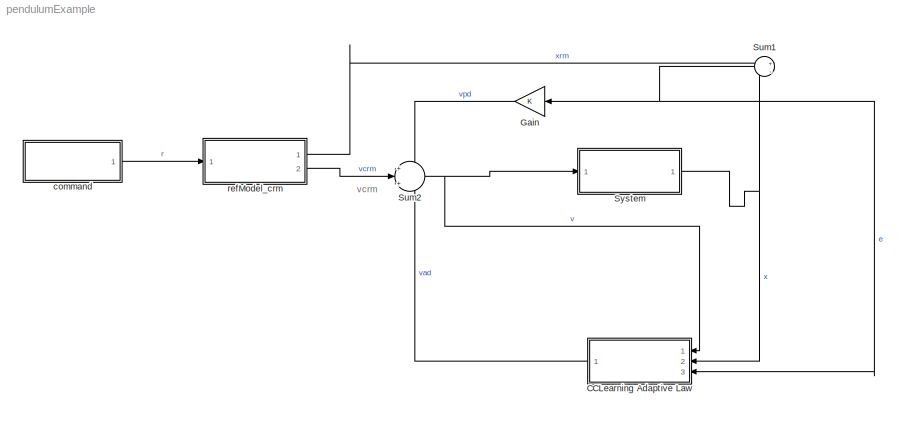
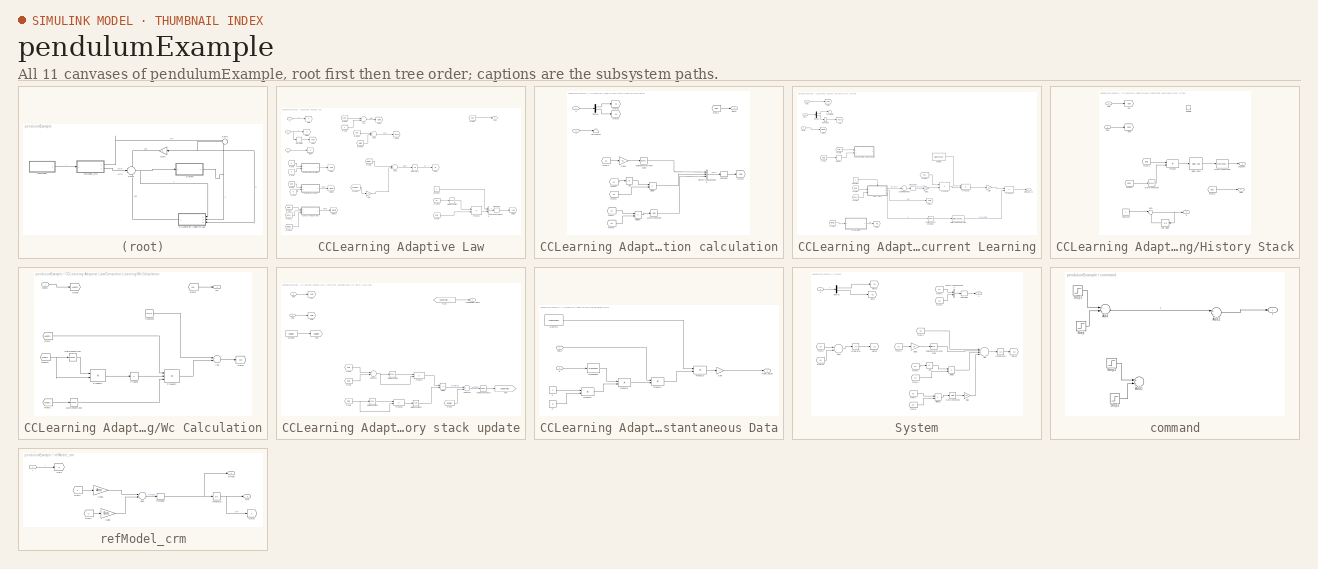
[diagram: thumbnail index - all 11 canvases of the model, root first then tree order]
MODEL pendulumExample
KIND model
CONFIG InitFcn = init\n
CONFIG StopFcn = plotlab
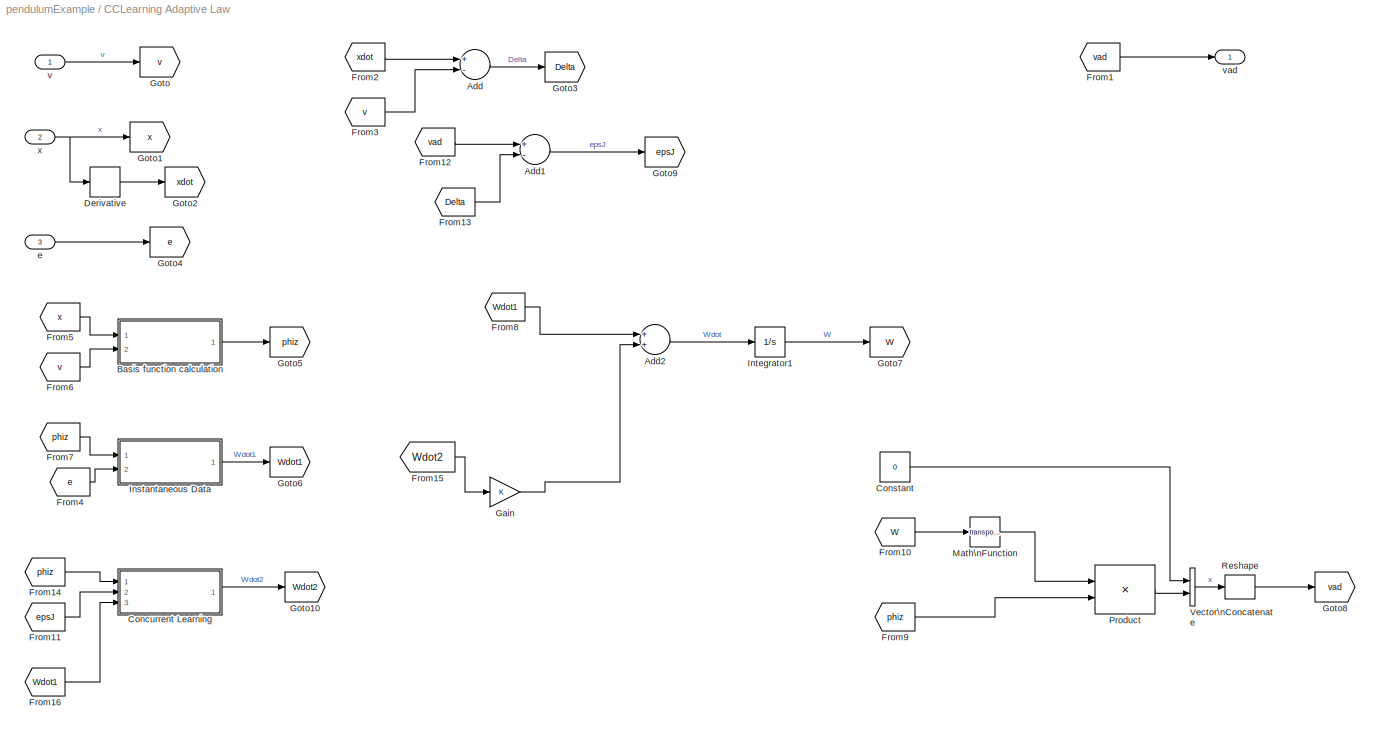
BLOCK [SubSystem] CCLearning Adaptive Law
  FunctionWithSeparateData = off
  MaskHideContents = off
  MinAlgLoopOccurrences = off
  Opaque = off
  Ports = [3, 1]
  PropExecContextOutsideSubsystem = off
  RTWSystemCode = Auto
  RequestExecContextInheritance = off
  TreatAsAtomicUnit = on
BLOCK [Sum] CCLearning Adaptive Law/Add
  InputSameDT = off
  Inputs = +-
  OutDataType = fixdt(1, 16)
  OutDataTypeMode = Inherit via internal rule
  OutDataTypeStr = Inherit: Inherit via internal rule
  OutScaling = 2^-10
  Ports = [2, 1]
  SaturateOnIntegerOverflow = off
BLOCK [Sum] CCLearning Adaptive Law/Add1
  InputSameDT = off
  Inputs = +-
  OutDataType = fixdt(1, 16)
  OutDataTypeMode = Inherit via internal rule
  OutDataTypeStr = Inherit: Inherit via internal rule
  OutScaling = 2^-10
  Ports = [2, 1]
  SaturateOnIntegerOverflow = off
BLOCK [Sum] CCLearning Adaptive Law/Add2
  InputSameDT = off
  OutDataType = fixdt(1, 16)
  OutDataTypeMode = Inherit via internal rule
  OutDataTypeStr = Inherit: Inherit via internal rule
  OutScaling = 2^-10
  Ports = [2, 1]
  SaturateOnIntegerOverflow = off
BLOCK [SubSystem] CCLearning Adaptive Law/Basis function calculation
  FunctionWithSeparateData = off
  MaskHideContents = off
  MinAlgLoopOccurrences = off
  Opaque = off
  Ports = [2, 1]
  PropExecContextOutsideSubsystem = off
  RTWSystemCode = Auto
  RequestExecContextInheritance = off
  TreatAsAtomicUnit = on
BLOCK [Abs] CCLearning Adaptive Law/Basis function calculation/Abs
  OutDataType = fixdt(1, 16)
  OutScaling = 2^0
  SaturateOnIntegerOverflow = off
BLOCK [Demux] CCLearning Adaptive Law/Basis function calculation/Demux
  DisplayOption = bar
  Outputs = 2
  Ports = [1, 2]
BLOCK [Product] CCLearning Adaptive Law/Basis function calculation/Divide
  InputSameDT = off
  Inputs = **
  OutDataType = fixdt(1, 16)
  OutDataTypeMode = Inherit via internal rule
  OutDataTypeStr = Inherit: Inherit via internal rule
  OutScaling = 2^-10
  Ports = [2, 1]
  RndMeth = Floor
  SaturateOnIntegerOverflow = off
BLOCK [Product] CCLearning Adaptive Law/Basis function calculation/Divide1
  InputSameDT = off
  Inputs = **
  OutDataType = fixdt(1, 16)
  OutDataTypeMode = Inherit via internal rule
  OutDataTypeStr = Inherit: Inherit via internal rule
  OutScaling = 2^-10
  Ports = [2, 1]
  RndMeth = Floor
  SaturateOnIntegerOverflow = off
BLOCK [From] CCLearning Adaptive Law/Basis function calculation/From1
  GotoTag = phiz
BLOCK [From] CCLearning Adaptive Law/Basis function calculation/From3
  GotoTag = x1
BLOCK [From] CCLearning Adaptive Law/Basis function calculation/From5
  GotoTag = x1
BLOCK [From] CCLearning Adaptive Law/Basis function calculation/From6
  GotoTag = x1
BLOCK [From] CCLearning Adaptive Law/Basis function calculation/From7
  GotoTag = x1
BLOCK [From] CCLearning Adaptive Law/Basis function calculation/From8
  GotoTag = x2
BLOCK [Gain] CCLearning Adaptive Law/Basis function calculation/Gain1
  Gain = pi
  OutDataType = fixdt(1, 16)
  OutDataTypeMode = Inherit via internal rule
  OutDataTypeStr = Inherit: Inherit via internal rule
  OutScaling = 2^0
  ParamDataTypeStr = Inherit: Inherit via internal rule
  ParameterDataType = fixdt(1, 16)
  ParameterDataTypeMode = Inherit via internal rule
  ParameterScaling = 2^0
  SaturateOnIntegerOverflow = off
BLOCK [Goto] CCLearning Adaptive Law/Basis function calculation/Goto1
  GotoTag = x1
  TagVisibility = local
BLOCK [Goto] CCLearning Adaptive Law/Basis function calculation/Goto2
  GotoTag = x2
  TagVisibility = local
BLOCK [Goto] CCLearning Adaptive Law/Basis function calculation/Goto3
  GotoTag = phiz
  TagVisibility = local
BLOCK [Math] CCLearning Adaptive Law/Basis function calculation/Math\nFunction
  OutDataType = fixdt(1, 16)
  OutScaling = 2^0
  Ports = [1, 1]
BLOCK [Reshape] CCLearning Adaptive Law/Basis function calculation/Reshape
  OutputDimensionality = Column vector (2-D)
  Ports = [1, 1]
BLOCK [Terminator] CCLearning Adaptive Law/Basis function calculation/Terminator
BLOCK [Trigonometry] CCLearning Adaptive Law/Basis function calculation/Trigonometric\nFunction
  Ports = [1, 1]
BLOCK [Concatenate] CCLearning Adaptive Law/Basis function calculation/Vector\nConcatenate
  Mode = Vector
  NumInputs = 3
  Ports = [3, 1]
BLOCK [Outport] CCLearning Adaptive Law/Basis function calculation/phi(z)
  IconDisplay = Port number
  OutDataType = fixdt(1, 16)
  OutScaling = 2^0
BLOCK [Inport] CCLearning Adaptive Law/Basis function calculation/v
  IconDisplay = Port number
  OutDataType = fixdt(1, 16)
  OutScaling = 2^0
  Port = 2
BLOCK [Inport] CCLearning Adaptive Law/Basis function calculation/x
  IconDisplay = Port number
  OutDataType = fixdt(1, 16)
  OutScaling = 2^0
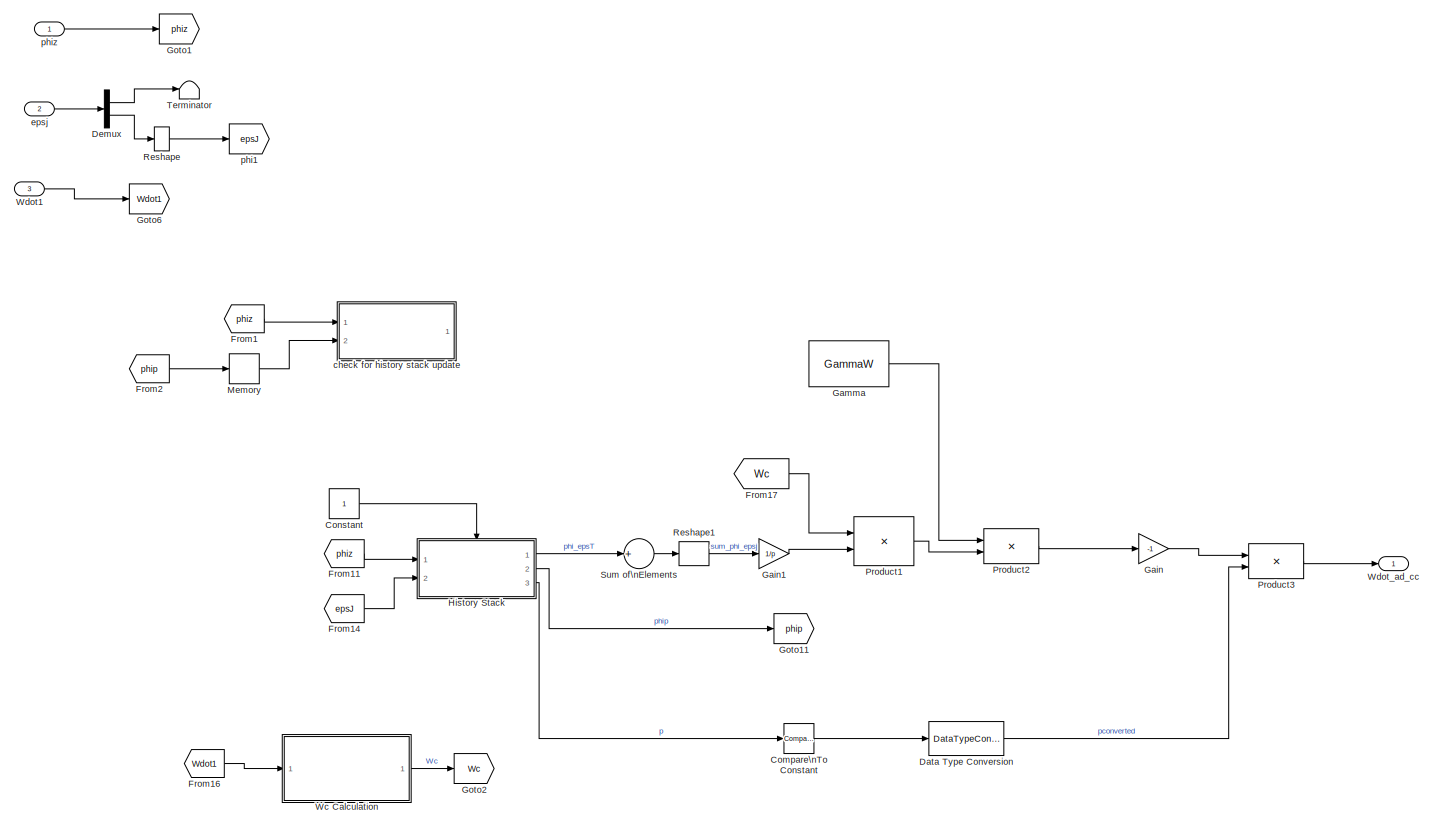
[diagram: CCLearning Adaptive Law/Concurrent Learning - part 1/1, most of the canvas]
BLOCK [SubSystem] CCLearning Adaptive Law/Concurrent Learning
  FunctionWithSeparateData = off
  MaskHideContents = off
  MinAlgLoopOccurrences = off
  Opaque = off
  Ports = [3, 1]
  PropExecContextOutsideSubsystem = off
  RTWSystemCode = Auto
  RequestExecContextInheritance = off
  TreatAsAtomicUnit = on
BLOCK [Reference] CCLearning Adaptive Law/Concurrent Learning/Compare\nTo Constant  REF=simulink/Logic and Bit\nOperations/Compare\nTo Constant
  FunctionWithSeparateData = off
  LogicOutDataTypeMode = uint8
  Ports = [1, 1]
  RTWMemSecDataConstants = Inherit from model
  RTWMemSecDataInternal = Inherit from model
  RTWMemSecDataParameters = Inherit from model
  RTWMemSecFuncExecute = Inherit from model
  RTWMemSecFuncInitTerm = Inherit from model
  ShowPortLabels = FromPortIcon
  SourceBlock = simulink/Logic and Bit\nOperations/Compare\nTo Constant
  SourceType = Compare To Constant
  SystemSampleTime = -1
  ZeroCross = off
  const = p
  relop = >=
BLOCK [Constant] CCLearning Adaptive Law/Concurrent Learning/Constant
  OutDataType = fixdt(1, 16)
  OutScaling = 2^0
BLOCK [DataTypeConversion] CCLearning Adaptive Law/Concurrent Learning/Data Type Conversion
  OutDataType = fixdt(1, 16)
  OutScaling = 2^0
  RndMeth = Floor
  SaturateOnIntegerOverflow = off
BLOCK [Demux] CCLearning Adaptive Law/Concurrent Learning/Demux
  DisplayOption = bar
  Outputs = 2
  Ports = [1, 2]
BLOCK [From] CCLearning Adaptive Law/Concurrent Learning/From1
  GotoTag = phiz
BLOCK [From] CCLearning Adaptive Law/Concurrent Learning/From11
  GotoTag = phiz
BLOCK [From] CCLearning Adaptive Law/Concurrent Learning/From14
  GotoTag = epsJ
BLOCK [From] CCLearning Adaptive Law/Concurrent Learning/From16
  GotoTag = Wdot1
BLOCK [From] CCLearning Adaptive Law/Concurrent Learning/From17
  GotoTag = Wc
BLOCK [From] CCLearning Adaptive Law/Concurrent Learning/From2
  GotoTag = phip
BLOCK [Gain] CCLearning Adaptive Law/Concurrent Learning/Gain
  Gain = -1
  OutDataType = fixdt(1, 16)
  OutDataTypeMode = Inherit via internal rule
  OutDataTypeStr = Inherit: Inherit via internal rule
  OutScaling = 2^0
  ParamDataTypeStr = Inherit: Inherit via internal rule
  ParameterDataType = fixdt(1, 16)
  ParameterDataTypeMode = Inherit via internal rule
  ParameterScaling = 2^0
  SaturateOnIntegerOverflow = off
BLOCK [Gain] CCLearning Adaptive Law/Concurrent Learning/Gain1
  Gain = 1/p
  OutDataType = fixdt(1, 16)
  OutDataTypeMode = Inherit via internal rule
  OutDataTypeStr = Inherit: Inherit via internal rule
  OutScaling = 2^0
  ParamDataTypeStr = Inherit: Inherit via internal rule
  ParameterDataType = fixdt(1, 16)
  ParameterDataTypeMode = Inherit via internal rule
  ParameterScaling = 2^0
  SaturateOnIntegerOverflow = off
BLOCK [Constant] CCLearning Adaptive Law/Concurrent Learning/Gamma
  OutDataType = fixdt(1, 16)
  OutScaling = 2^0
  Value = GammaW
  VectorParams1D = off
BLOCK [Goto] CCLearning Adaptive Law/Concurrent Learning/Goto1
  GotoTag = phiz
  TagVisibility = local
BLOCK [Goto] CCLearning Adaptive Law/Concurrent Learning/Goto11
  GotoTag = phip
  TagVisibility = local
BLOCK [Goto] CCLearning Adaptive Law/Concurrent Learning/Goto2
  GotoTag = Wc
  TagVisibility = local
BLOCK [Goto] CCLearning Adaptive Law/Concurrent Learning/Goto6
  GotoTag = Wdot1
  TagVisibility = local
BLOCK [SubSystem] CCLearning Adaptive Law/Concurrent Learning/History Stack
  FunctionWithSeparateData = off
  MaskHideContents = off
  MinAlgLoopOccurrences = off
  Opaque = off
  Ports = [2, 3, 1]
  PropExecContextOutsideSubsystem = off
  RTWSystemCode = Auto
  RequestExecContextInheritance = off
  TreatAsAtomicUnit = on
BLOCK [Constant] CCLearning Adaptive Law/Concurrent Learning/History Stack/Constant
  OutDataType = fixdt(1, 16)
  OutScaling = 2^0
BLOCK [Reference] CCLearning Adaptive Law/Concurrent Learning/History Stack/Delay Line1  REF=dspbuff3/Delay Line
  Ports = [1, 1]
  SourceBlock = dspbuff3/Delay Line
  SourceType = Delay Line
  directfeed = on
  enable_output = off
  hold_output = off
  ic = 0
  siz = p
BLOCK [EnablePort] CCLearning Adaptive Law/Concurrent Learning/History Stack/Enable
  Ports = []
BLOCK [FrameConversion] CCLearning Adaptive Law/Concurrent Learning/History Stack/Frame Conversion
  OutFrame = Sample-based
  Ports = [1, 1]
BLOCK [From] CCLearning Adaptive Law/Concurrent Learning/History Stack/From1
  GotoTag = epsj
BLOCK [From] CCLearning Adaptive Law/Concurrent Learning/History Stack/From2
  GotoTag = phiz
BLOCK [From] CCLearning Adaptive Law/Concurrent Learning/History Stack/From3
  GotoTag = phiz
BLOCK [Math] CCLearning Adaptive Law/Concurrent Learning/History Stack/Math\nFunction
  Operator = transpose
  OutDataType = fixdt(1, 16)
  OutScaling = 2^0
  Ports = [1, 1]
BLOCK [Product] CCLearning Adaptive Law/Concurrent Learning/History Stack/Product
  InputSameDT = off
  Multiplication = Matrix(*)
  OutDataType = fixdt(1, 16)
  OutDataTypeMode = Inherit via internal rule
  OutDataTypeStr = Inherit: Inherit via internal rule
  OutScaling = 2^0
  Ports = [2, 1]
  SaturateOnIntegerOverflow = off
BLOCK [Sum] CCLearning Adaptive Law/Concurrent Learning/History Stack/Sum
  IconShape = round
  InputSameDT = off
  Inputs = |++
  OutDataType = fixdt(1, 16)
  OutDataTypeMode = Inherit via internal rule
  OutDataTypeStr = Inherit: Inherit via internal rule
  OutScaling = 2^0
  Ports = [2, 1]
  SaturateOnIntegerOverflow = off
BLOCK [UnitDelay] CCLearning Adaptive Law/Concurrent Learning/History Stack/Unit Delay
  SampleTime = -1
BLOCK [Inport] CCLearning Adaptive Law/Concurrent Learning/History Stack/epsj
  IconDisplay = Port number
  OutDataType = fixdt(1, 16)
  OutScaling = 2^0
  Port = 2
BLOCK [Outport] CCLearning Adaptive Law/Concurrent Learning/History Stack/p
  IconDisplay = Port number
  OutDataType = fixdt(1, 16)
  OutScaling = 2^0
  Port = 3
BLOCK [Goto] CCLearning Adaptive Law/Concurrent Learning/History Stack/phi
  GotoTag = phiz
  TagVisibility = local
BLOCK [Goto] CCLearning Adaptive Law/Concurrent Learning/History Stack/phi1
  GotoTag = epsj
  TagVisibility = local
BLOCK [Outport] CCLearning Adaptive Law/Concurrent Learning/History Stack/phi_epsT
  IconDisplay = Port number
  OutDataType = fixdt(1, 16)
  OutScaling = 2^0
BLOCK [Outport] CCLearning Adaptive Law/Concurrent Learning/History Stack/phip
  IconDisplay = Port number
  OutDataType = fixdt(1, 16)
  OutScaling = 2^0
  Port = 2
BLOCK [Inport] CCLearning Adaptive Law/Concurrent Learning/History Stack/phiz
  IconDisplay = Port number
  OutDataType = fixdt(1, 16)
  OutScaling = 2^0
BLOCK [Memory] CCLearning Adaptive Law/Concurrent Learning/Memory
BLOCK [Product] CCLearning Adaptive Law/Concurrent Learning/Product1
  InputSameDT = off
  Multiplication = Matrix(*)
  OutDataType = fixdt(1, 16)
  OutDataTypeMode = Inherit via internal rule
  OutDataTypeStr = Inherit: Inherit via internal rule
  OutScaling = 2^0
  Ports = [2, 1]
  SaturateOnIntegerOverflow = off
BLOCK [Product] CCLearning Adaptive Law/Concurrent Learning/Product2
  InputSameDT = off
  OutDataType = fixdt(1, 16)
  OutDataTypeMode = Inherit via internal rule
  OutDataTypeStr = Inherit: Inherit via internal rule
  OutScaling = 2^0
  Ports = [2, 1]
  SaturateOnIntegerOverflow = off
BLOCK [Product] CCLearning Adaptive Law/Concurrent Learning/Product3
  InputSameDT = off
  OutDataType = fixdt(1, 16)
  OutDataTypeMode = Inherit via internal rule
  OutDataTypeStr = Inherit: Inherit via internal rule
  OutScaling = 2^0
  Ports = [2, 1]
  SaturateOnIntegerOverflow = off
BLOCK [Reshape] CCLearning Adaptive Law/Concurrent Learning/Reshape
  OutputDimensionality = Column vector (2-D)
  Ports = [1, 1]
BLOCK [Reshape] CCLearning Adaptive Law/Concurrent Learning/Reshape1
  OutputDimensionality = Column vector (2-D)
  Ports = [1, 1]
BLOCK [Sum] CCLearning Adaptive Law/Concurrent Learning/Sum of\nElements
  CollapseMode = Specified dimension
  InputSameDT = off
  Inputs = +
  OutDataType = fixdt(1, 16)
  OutDataTypeMode = Inherit via internal rule
  OutDataTypeStr = Inherit: Inherit via internal rule
  OutScaling = 2^-10
  Ports = [1, 1]
  SaturateOnIntegerOverflow = off
BLOCK [Terminator] CCLearning Adaptive Law/Concurrent Learning/Terminator
BLOCK [SubSystem] CCLearning Adaptive Law/Concurrent Learning/Wc Calculation
  FunctionWithSeparateData = off
  MaskHideContents = off
  MinAlgLoopOccurrences = off
  Opaque = off
  Ports = [1, 1]
  PropExecContextOutsideSubsystem = off
  RTWSystemCode = Auto
  RequestExecContextInheritance = off
BLOCK [Sum] CCLearning Adaptive Law/Concurrent Learning/Wc Calculation/Add
  InputSameDT = off
  Inputs = +-
  OutDataType = fixdt(1, 16)
  OutDataTypeMode = Inherit via internal rule
  OutDataTypeStr = Inherit: Inherit via internal rule
  OutScaling = 2^-10
  Ports = [2, 1]
  SaturateOnIntegerOverflow = off
BLOCK [Constant] CCLearning Adaptive Law/Concurrent Learning/Wc Calculation/Constant
  OutDataType = fixdt(1, 16)
  OutScaling = 2^0
  Value = eye(3)
BLOCK [From] CCLearning Adaptive Law/Concurrent Learning/Wc Calculation/From1
  GotoTag = Wdot1
BLOCK [From] CCLearning Adaptive Law/Concurrent Learning/Wc Calculation/From16
  GotoTag = Wdot1
BLOCK [From] CCLearning Adaptive Law/Concurrent Learning/Wc Calculation/From2
  GotoTag = Wdot1
BLOCK [From] CCLearning Adaptive Law/Concurrent Learning/Wc Calculation/From3
  GotoTag = Wc
BLOCK [Goto] CCLearning Adaptive Law/Concurrent Learning/Wc Calculation/Goto1
  GotoTag = Wc
  TagVisibility = local
BLOCK [Goto] CCLearning Adaptive Law/Concurrent Learning/Wc Calculation/Goto6
  GotoTag = Wdot1
  TagVisibility = local
BLOCK [Math] CCLearning Adaptive Law/Concurrent Learning/Wc Calculation/Math\nFunction1
  Operator = transpose
  OutDataType = fixdt(1, 16)
  OutScaling = 2^0
  Ports = [1, 1]
BLOCK [Math] CCLearning Adaptive Law/Concurrent Learning/Wc Calculation/Math\nFunction2
  Operator = transpose
  OutDataType = fixdt(1, 16)
  OutScaling = 2^0
  Ports = [1, 1]
BLOCK [Product] CCLearning Adaptive Law/Concurrent Learning/Wc Calculation/Product
  InputSameDT = off
  Inputs = /
  Multiplication = Matrix(*)
  OutDataType = fixdt(1, 16)
  OutDataTypeMode = Inherit via internal rule
  OutDataTypeStr = Inherit: Inherit via internal rule
  OutScaling = 2^0
  Ports = [1, 1]
  SaturateOnIntegerOverflow = off
BLOCK [Product] CCLearning Adaptive Law/Concurrent Learning/Wc Calculation/Product1
  InputSameDT = off
  Multiplication = Matrix(*)
  OutDataType = fixdt(1, 16)
  OutDataTypeMode = Inherit via internal rule
  OutDataTypeStr = Inherit: Inherit via internal rule
  OutScaling = 2^0
  Ports = [2, 1]
  SaturateOnIntegerOverflow = off
BLOCK [Product] CCLearning Adaptive Law/Concurrent Learning/Wc Calculation/Product2
  InputSameDT = off
  Inputs = ***
  Multiplication = Matrix(*)
  OutDataType = fixdt(1, 16)
  OutDataTypeMode = Inherit via internal rule
  OutDataTypeStr = Inherit: Inherit via internal rule
  OutScaling = 2^0
  Ports = [3, 1]
  SaturateOnIntegerOverflow = off
BLOCK [Outport] CCLearning Adaptive Law/Concurrent Learning/Wc Calculation/Wc
  IconDisplay = Port number
BLOCK [Inport] CCLearning Adaptive Law/Concurrent Learning/Wc Calculation/Wdot1
  IconDisplay = Port number
BLOCK [Inport] CCLearning Adaptive Law/Concurrent Learning/Wdot1
  IconDisplay = Port number
  Port = 3
BLOCK [Outport] CCLearning Adaptive Law/Concurrent Learning/Wdot_ad_cc
  IconDisplay = Port number
  OutDataType = fixdt(1, 16)
  OutScaling = 2^0
BLOCK [SubSystem] CCLearning Adaptive Law/Concurrent Learning/check for history stack update
  FunctionWithSeparateData = off
  MaskHideContents = off
  MinAlgLoopOccurrences = off
  Opaque = off
  Ports = [2, 1]
  PropExecContextOutsideSubsystem = off
  RTWSystemCode = Auto
  RequestExecContextInheritance = off
  TreatAsAtomicUnit = on
BLOCK [Reference] CCLearning Adaptive Law/Concurrent Learning/check for history stack update/Compare\nTo Zero  REF=simulink/Logic and Bit\nOperations/Compare\nTo Zero
  FunctionWithSeparateData = off
  LogicOutDataTypeMode = uint8
  Ports = [1, 1]
  RTWMemSecDataConstants = Inherit from model
  RTWMemSecDataInternal = Inherit from model
  RTWMemSecDataParameters = Inherit from model
  RTWMemSecFuncExecute = Inherit from model
  RTWMemSecFuncInitTerm = Inherit from model
  ShowPortLabels = FromPortIcon
  SourceBlock = simulink/Logic and Bit\nOperations/Compare\nTo Zero
  SourceType = Compare To Zero
  SystemSampleTime = -1
  ZeroCross = off
  relop = >=
BLOCK [Constant] CCLearning Adaptive Law/Concurrent Learning/check for history stack update/Constant
  OutDataType = fixdt(1, 16)
  OutScaling = 2^0
  Value = epsilon
BLOCK [Product] CCLearning Adaptive Law/Concurrent Learning/check for history stack update/Divide
  InputSameDT = off
  Inputs = */
  OutDataType = fixdt(1, 16)
  OutDataTypeMode = Inherit via internal rule
  OutDataTypeStr = Inherit: Inherit via internal rule
  OutScaling = 2^-10
  Ports = [2, 1]
  RndMeth = Floor
  SaturateOnIntegerOverflow = off
BLOCK [From] CCLearning Adaptive Law/Concurrent Learning/check for history stack update/From
  GotoTag = updateHistoryStack
BLOCK [From] CCLearning Adaptive Law/Concurrent Learning/check for history stack update/From1
  GotoTag = phiz
BLOCK [From] CCLearning Adaptive Law/Concurrent Learning/check for history stack update/From2
  GotoTag = phip
BLOCK [From] CCLearning Adaptive Law/Concurrent Learning/check for history stack update/From3
  GotoTag = phiz
BLOCK [From] CCLearning Adaptive Law/Concurrent Learning/check for history stack update/From4
  GotoTag = epsilon
BLOCK [Math] CCLearning Adaptive Law/Concurrent Learning/check for history stack update/Math\nFunction
  Operator = transpose
  OutDataType = fixdt(1, 16)
  OutScaling = 2^0
  Ports = [1, 1]
BLOCK [Math] CCLearning Adaptive Law/Concurrent Learning/check for history stack update/Math\nFunction1
  Operator = transpose
  OutDataType = fixdt(1, 16)
  OutScaling = 2^0
  Ports = [1, 1]
BLOCK [Math] CCLearning Adaptive Law/Concurrent Learning/check for history stack update/Math\nFunction2
  Operator = sqrt
  OutDataType = fixdt(1, 16)
  OutScaling = 2^0
  Ports = [1, 1]
BLOCK [Product] CCLearning Adaptive Law/Concurrent Learning/check for history stack update/Product
  InputSameDT = off
  Multiplication = Matrix(*)
  OutDataType = fixdt(1, 16)
  OutDataTypeMode = Inherit via internal rule
  OutDataTypeStr = Inherit: Inherit via internal rule
  OutScaling = 2^0
  Ports = [2, 1]
  SaturateOnIntegerOverflow = off
BLOCK [Product] CCLearning Adaptive Law/Concurrent Learning/check for history stack update/Product1
  InputSameDT = off
  Multiplication = Matrix(*)
  OutDataType = fixdt(1, 16)
  OutDataTypeMode = Inherit via internal rule
  OutDataTypeStr = Inherit: Inherit via internal rule
  OutScaling = 2^0
  Ports = [2, 1]
  SaturateOnIntegerOverflow = off
BLOCK [Sum] CCLearning Adaptive Law/Concurrent Learning/check for history stack update/Subtract
  InputSameDT = off
  Inputs = +-
  OutDataType = fixdt(1, 16)
  OutDataTypeMode = Inherit via internal rule
  OutDataTypeStr = Inherit: Inherit via internal rule
  OutScaling = 2^-10
  Ports = [2, 1]
  SaturateOnIntegerOverflow = off
BLOCK [Sum] CCLearning Adaptive Law/Concurrent Learning/check for history stack update/Subtract1
  InputSameDT = off
  Inputs = +-
  OutDataType = fixdt(1, 16)
  OutDataTypeMode = Inherit via internal rule
  OutDataTypeStr = Inherit: Inherit via internal rule
  OutScaling = 2^-10
  Ports = [2, 1]
  SaturateOnIntegerOverflow = off
BLOCK [Goto] CCLearning Adaptive Law/Concurrent Learning/check for history stack update/phi
  GotoTag = phiz
  TagVisibility = local
BLOCK [Goto] CCLearning Adaptive Law/Concurrent Learning/check for history stack update/phi1
  GotoTag = phip
  TagVisibility = local
BLOCK [Goto] CCLearning Adaptive Law/Concurrent Learning/check for history stack update/phi2
  GotoTag = epsilon
  TagVisibility = local
BLOCK [Goto] CCLearning Adaptive Law/Concurrent Learning/check for history stack update/phi3
  GotoTag = updateHistoryStack
  TagVisibility = local
BLOCK [Inport] CCLearning Adaptive Law/Concurrent Learning/check for history stack update/phip
  IconDisplay = Port number
  OutDataType = fixdt(1, 16)
  OutScaling = 2^0
  Port = 2
BLOCK [Inport] CCLearning Adaptive Law/Concurrent Learning/check for history stack update/phiz
  IconDisplay = Port number
  OutDataType = fixdt(1, 16)
  OutScaling = 2^0
BLOCK [Outport] CCLearning Adaptive Law/Concurrent Learning/check for history stack update/updateHistoryStack
  IconDisplay = Port number
  OutDataType = fixdt(1, 16)
  OutScaling = 2^0
BLOCK [Inport] CCLearning Adaptive Law/Concurrent Learning/epsj
  IconDisplay = Port number
  OutDataType = fixdt(1, 16)
  OutScaling = 2^0
  Port = 2
BLOCK [Goto] CCLearning Adaptive Law/Concurrent Learning/phi1
  GotoTag = epsJ
  TagVisibility = local
BLOCK [Inport] CCLearning Adaptive Law/Concurrent Learning/phiz
  IconDisplay = Port number
  OutDataType = fixdt(1, 16)
  OutScaling = 2^0
BLOCK [Constant] CCLearning Adaptive Law/Constant
  OutDataType = fixdt(1, 16)
  OutScaling = 2^0
  Value = 0
BLOCK [Derivative] CCLearning Adaptive Law/Derivative
BLOCK [From] CCLearning Adaptive Law/From1
  GotoTag = vad
BLOCK [From] CCLearning Adaptive Law/From10
  GotoTag = W
BLOCK [From] CCLearning Adaptive Law/From11
  GotoTag = epsJ
BLOCK [From] CCLearning Adaptive Law/From12
  GotoTag = vad
BLOCK [From] CCLearning Adaptive Law/From13
  GotoTag = Delta
BLOCK [From] CCLearning Adaptive Law/From14
  GotoTag = phiz
BLOCK [From] CCLearning Adaptive Law/From15
  GotoTag = Wdot2
BLOCK [From] CCLearning Adaptive Law/From16
  GotoTag = Wdot1
BLOCK [From] CCLearning Adaptive Law/From2
  GotoTag = xdot
BLOCK [From] CCLearning Adaptive Law/From3
  GotoTag = v
BLOCK [From] CCLearning Adaptive Law/From4
  GotoTag = e
BLOCK [From] CCLearning Adaptive Law/From5
  GotoTag = x
BLOCK [From] CCLearning Adaptive Law/From6
  GotoTag = v
BLOCK [From] CCLearning Adaptive Law/From7
  GotoTag = phiz
BLOCK [From] CCLearning Adaptive Law/From8
  GotoTag = Wdot1
BLOCK [From] CCLearning Adaptive Law/From9
  GotoTag = phiz
BLOCK [Gain] CCLearning Adaptive Law/Gain
  OutDataType = fixdt(1, 16)
  OutDataTypeMode = Inherit via internal rule
  OutDataTypeStr = Inherit: Inherit via internal rule
  OutScaling = 2^0
  ParamDataTypeStr = Inherit: Inherit via internal rule
  ParameterDataType = fixdt(1, 16)
  ParameterDataTypeMode = Inherit via internal rule
  ParameterScaling = 2^0
  SaturateOnIntegerOverflow = off
BLOCK [Goto] CCLearning Adaptive Law/Goto
  GotoTag = v
  TagVisibility = local
BLOCK [Goto] CCLearning Adaptive Law/Goto1
  GotoTag = x
  TagVisibility = local
BLOCK [Goto] CCLearning Adaptive Law/Goto10
  GotoTag = Wdot2
  TagVisibility = local
BLOCK [Goto] CCLearning Adaptive Law/Goto2
  GotoTag = xdot
  TagVisibility = local
BLOCK [Goto] CCLearning Adaptive Law/Goto3
  GotoTag = Delta
  TagVisibility = local
BLOCK [Goto] CCLearning Adaptive Law/Goto4
  GotoTag = e
  TagVisibility = local
BLOCK [Goto] CCLearning Adaptive Law/Goto5
  GotoTag = phiz
  TagVisibility = local
BLOCK [Goto] CCLearning Adaptive Law/Goto6
  GotoTag = Wdot1
  TagVisibility = local
BLOCK [Goto] CCLearning Adaptive Law/Goto7
  GotoTag = W
  TagVisibility = local
BLOCK [Goto] CCLearning Adaptive Law/Goto8
  GotoTag = vad
  TagVisibility = local
BLOCK [Goto] CCLearning Adaptive Law/Goto9
  GotoTag = epsJ
  TagVisibility = local
BLOCK [SubSystem] CCLearning Adaptive Law/Instantaneous Data
  FunctionWithSeparateData = off
  MaskHideContents = off
  MinAlgLoopOccurrences = off
  Opaque = off
  Ports = [2, 1]
  PropExecContextOutsideSubsystem = off
  RTWSystemCode = Auto
  RequestExecContextInheritance = off
  TreatAsAtomicUnit = on
BLOCK [Gain] CCLearning Adaptive Law/Instantaneous Data/Gain
  Gain = -1
  OutDataType = fixdt(1, 16)
  OutDataTypeMode = Inherit via internal rule
  OutDataTypeStr = Inherit: Inherit via internal rule
  OutScaling = 2^0
  ParamDataTypeStr = Inherit: Inherit via internal rule
  ParameterDataType = fixdt(1, 16)
  ParameterDataTypeMode = Inherit via internal rule
  ParameterScaling = 2^0
  SaturateOnIntegerOverflow = off
BLOCK [Constant] CCLearning Adaptive Law/Instantaneous Data/Gamma
  OutDataType = fixdt(1, 16)
  OutScaling = 2^0
  Value = GammaW
  VectorParams1D = off
BLOCK [Constant] CCLearning Adaptive Law/Instantaneous Data/P
  OutDataType = fixdt(1, 16)
  OutScaling = 2^0
  Value = P
  VectorParams1D = off
BLOCK [Product] CCLearning Adaptive Law/Instantaneous Data/Product1
  InputSameDT = off
  Multiplication = Matrix(*)
  OutDataType = fixdt(1, 16)
  OutDataTypeMode = Inherit via internal rule
  OutDataTypeStr = Inherit: Inherit via internal rule
  OutScaling = 2^0
  Ports = [2, 1]
  SaturateOnIntegerOverflow = off
BLOCK [Product] CCLearning Adaptive Law/Instantaneous Data/Product2
  InputSameDT = off
  OutDataType = fixdt(1, 16)
  OutDataTypeMode = Inherit via internal rule
  OutDataTypeStr = Inherit: Inherit via internal rule
  OutScaling = 2^0
  Ports = [2, 1]
  SaturateOnIntegerOverflow = off
BLOCK [Product] CCLearning Adaptive Law/Instantaneous Data/Product3
  InputSameDT = off
  Multiplication = Matrix(*)
  OutDataType = fixdt(1, 16)
  OutDataTypeMode = Inherit via internal rule
  OutDataTypeStr = Inherit: Inherit via internal rule
  OutScaling = 2^0
  Ports = [2, 1]
  SaturateOnIntegerOverflow = off
BLOCK [Product] CCLearning Adaptive Law/Instantaneous Data/Product5
  InputSameDT = off
  Multiplication = Matrix(*)
  OutDataType = fixdt(1, 16)
  OutDataTypeMode = Inherit via internal rule
  OutDataTypeStr = Inherit: Inherit via internal rule
  OutScaling = 2^0
  Ports = [2, 1]
  SaturateOnIntegerOverflow = off
BLOCK [Reference] CCLearning Adaptive Law/Instantaneous Data/Transpose2  REF=dspmtrx3/Transpose
  FunctionWithSeparateData = off
  Hermitian = off
  Ports = [1, 1]
  RTWMemSecDataConstants = Inherit from model
  RTWMemSecDataInternal = Inherit from model
  RTWMemSecDataParameters = Inherit from model
  RTWMemSecFuncExecute = Inherit from model
  RTWMemSecFuncInitTerm = Inherit from model
  ShowPortLabels = FromPortIcon
  SourceBlock = dspmtrx3/Transpose
  SourceType = Transpose
  SystemSampleTime = -1
  overflowFlag = off
BLOCK [Outport] CCLearning Adaptive Law/Instantaneous Data/Wdot_ad_ins
  IconDisplay = Port number
  OutDataType = fixdt(1, 16)
  OutScaling = 2^0
BLOCK [Constant] CCLearning Adaptive Law/Instantaneous Data/b
  OutDataType = fixdt(1, 16)
  OutScaling = 2^0
  Value = B
  VectorParams1D = off
BLOCK [Inport] CCLearning Adaptive Law/Instantaneous Data/e
  IconDisplay = Port number
  OutDataType = fixdt(1, 16)
  OutScaling = 2^0
  Port = 2
BLOCK [Inport] CCLearning Adaptive Law/Instantaneous Data/phi(z)
  IconDisplay = Port number
  OutDataType = fixdt(1, 16)
  OutScaling = 2^0
BLOCK [Integrator] CCLearning Adaptive Law/Integrator1
  InitialCondition = W0
  Ports = [1, 1]
BLOCK [Math] CCLearning Adaptive Law/Math\nFunction
  Operator = transpose
  OutDataType = fixdt(1, 16)
  OutScaling = 2^0
  Ports = [1, 1]
BLOCK [Product] CCLearning Adaptive Law/Product
  InputSameDT = off
  Multiplication = Matrix(*)
  OutDataType = fixdt(1, 16)
  OutDataTypeMode = Inherit via internal rule
  OutDataTypeStr = Inherit: Inherit via internal rule
  OutScaling = 2^0
  Ports = [2, 1]
  SaturateOnIntegerOverflow = off
BLOCK [Reshape] CCLearning Adaptive Law/Reshape
  OutputDimensionality = Column vector (2-D)
  Ports = [1, 1]
BLOCK [Concatenate] CCLearning Adaptive Law/Vector\nConcatenate
  Mode = Vector
  Ports = [2, 1]
BLOCK [Inport] CCLearning Adaptive Law/e
  IconDisplay = Port number
  OutDataType = fixdt(1, 16)
  OutScaling = 2^0
  Port = 3
BLOCK [Inport] CCLearning Adaptive Law/v
  IconDisplay = Port number
  OutDataType = fixdt(1, 16)
  OutScaling = 2^0
BLOCK [Outport] CCLearning Adaptive Law/vad
  IconDisplay = Port number
  OutDataType = fixdt(1, 16)
  OutScaling = 2^0
BLOCK [Inport] CCLearning Adaptive Law/x
  IconDisplay = Port number
  OutDataType = fixdt(1, 16)
  OutScaling = 2^0
  Port = 2
BLOCK [Gain] Gain
  Gain = K
  Multiplication = Matrix(K*u)
  OutDataType = fixdt(1, 16)
  OutDataTypeMode = Inherit via internal rule
  OutDataTypeStr = Inherit: Inherit via internal rule
  OutScaling = 2^0
  ParamDataTypeStr = Inherit: Inherit via internal rule
  ParameterDataType = fixdt(1, 16)
  ParameterDataTypeMode = Inherit via internal rule
  ParameterScaling = 2^0
  SaturateOnIntegerOverflow = off
BLOCK [Sum] Sum1
  IconShape = round
  InputSameDT = off
  Inputs = +|-
  OutDataType = fixdt(1, 16)
  OutDataTypeMode = Inherit via internal rule
  OutDataTypeStr = Inherit: Inherit via internal rule
  OutScaling = 2^0
  Ports = [2, 1]
  SaturateOnIntegerOverflow = off
BLOCK [Sum] Sum2
  IconShape = round
  InputSameDT = off
  Inputs = +|+|-
  OutDataType = fixdt(1, 16)
  OutDataTypeMode = Inherit via internal rule
  OutDataTypeStr = Inherit: Inherit via internal rule
  OutScaling = 2^0
  Ports = [3, 1]
  SaturateOnIntegerOverflow = off
BLOCK [SubSystem] System
  FunctionWithSeparateData = off
  MaskHideContents = off
  MinAlgLoopOccurrences = off
  Opaque = off
  Ports = [1, 1]
  PropExecContextOutsideSubsystem = off
  RTWSystemCode = Auto
  RequestExecContextInheritance = off
  TreatAsAtomicUnit = on
BLOCK [Abs] System/Abs
  OutDataType = fixdt(1, 16)
  OutScaling = 2^0
  SaturateOnIntegerOverflow = off
BLOCK [Sum] System/Add
  InputSameDT = off
  Inputs = ++-+
  OutDataType = fixdt(1, 16)
  OutDataTypeMode = Inherit via internal rule
  OutDataTypeStr = Inherit: Inherit via internal rule
  OutScaling = 2^-10
  Ports = [4, 1]
  SaturateOnIntegerOverflow = off
BLOCK [Sum] System/Add1
  InputSameDT = off
  OutDataType = fixdt(1, 16)
  OutDataTypeMode = Inherit via internal rule
  OutDataTypeStr = Inherit: Inherit via internal rule
  OutScaling = 2^-10
  Ports = [2, 1]
  SaturateOnIntegerOverflow = off
BLOCK [Demux] System/Demux
  DisplayOption = bar
  Outputs = 2
  Ports = [1, 2]
BLOCK [Product] System/Divide
  InputSameDT = off
  Inputs = **
  OutDataType = fixdt(1, 16)
  OutDataTypeMode = Inherit via internal rule
  OutDataTypeStr = Inherit: Inherit via internal rule
  OutScaling = 2^-10
  Ports = [2, 1]
  RndMeth = Floor
  SaturateOnIntegerOverflow = off
BLOCK [Product] System/Divide1
  InputSameDT = off
  Inputs = **
  OutDataType = fixdt(1, 16)
  OutDataTypeMode = Inherit via internal rule
  OutDataTypeStr = Inherit: Inherit via internal rule
  OutScaling = 2^-10
  Ports = [2, 1]
  RndMeth = Floor
  SaturateOnIntegerOverflow = off
BLOCK [From] System/From1
  GotoTag = x1
BLOCK [From] System/From10
  GotoTag = u1
BLOCK [From] System/From2
  GotoTag = x2
BLOCK [From] System/From3
  GotoTag = x1
BLOCK [From] System/From4
  GotoTag = u2
BLOCK [From] System/From5
  GotoTag = x1
BLOCK [From] System/From6
  GotoTag = x1
BLOCK [From] System/From7
  GotoTag = x1
BLOCK [From] System/From8
  GotoTag = x2
BLOCK [From] System/From9
  GotoTag = x2
BLOCK [Gain] System/Gain
  Gain = 0.5
  OutDataType = fixdt(1, 16)
  OutDataTypeMode = Inherit via internal rule
  OutDataTypeStr = Inherit: Inherit via internal rule
  OutScaling = 2^0
  ParamDataTypeStr = Inherit: Inherit via internal rule
  ParameterDataType = fixdt(1, 16)
  ParameterDataTypeMode = Inherit via internal rule
  ParameterScaling = 2^0
  SaturateOnIntegerOverflow = off
BLOCK [Gain] System/Gain1
  Gain = pi
  OutDataType = fixdt(1, 16)
  OutDataTypeMode = Inherit via internal rule
  OutDataTypeStr = Inherit: Inherit via internal rule
  OutScaling = 2^0
  ParamDataTypeStr = Inherit: Inherit via internal rule
  ParameterDataType = fixdt(1, 16)
  ParameterDataTypeMode = Inherit via internal rule
  ParameterScaling = 2^0
  SaturateOnIntegerOverflow = off
BLOCK [Goto] System/Goto
  GotoTag = u2
  TagVisibility = local
BLOCK [Goto] System/Goto1
  GotoTag = u1
  TagVisibility = local
BLOCK [Goto] System/Goto3
  GotoTag = x1
  TagVisibility = local
BLOCK [Goto] System/Goto4
  GotoTag = x2
  TagVisibility = local
BLOCK [Integrator] System/Integrator
  InitialCondition = x0(1,1)
  Ports = [1, 1]
BLOCK [Integrator] System/Integrator1
  InitialCondition = x0(2,1)
  Ports = [1, 1]
BLOCK [Math] System/Math\nFunction
  OutDataType = fixdt(1, 16)
  OutScaling = 2^0
  Ports = [1, 1]
BLOCK [Reshape] System/Reshape
  OutputDimensionality = Column vector (2-D)
  Ports = [1, 1]
BLOCK [Trigonometry] System/Trigonometric\nFunction
  Ports = [1, 1]
BLOCK [Concatenate] System/Vector\nConcatenate
  Mode = Vector
  Ports = [2, 1]
BLOCK [Inport] System/u
  IconDisplay = Port number
  OutDataType = fixdt(1, 16)
  OutScaling = 2^0
BLOCK [Outport] System/x
  IconDisplay = Port number
  OutDataType = fixdt(1, 16)
  OutScaling = 2^0
BLOCK [SubSystem] command
  FunctionWithSeparateData = off
  MaskHideContents = off
  MinAlgLoopOccurrences = off
  Opaque = off
  Ports = [0, 1]
  PropExecContextOutsideSubsystem = off
  RTWSystemCode = Auto
  RequestExecContextInheritance = off
BLOCK [Sum] command/Add
  InputSameDT = off
  OutDataType = fixdt(1, 16)
  OutDataTypeMode = Inherit via internal rule
  OutDataTypeStr = Inherit: Inherit via internal rule
  OutScaling = 2^-10
  Ports = [2, 1]
  SaturateOnIntegerOverflow = off
BLOCK [Sum] command/Add1
  InputSameDT = off
  OutDataType = fixdt(1, 16)
  OutDataTypeMode = Inherit via internal rule
  OutDataTypeStr = Inherit: Inherit via internal rule
  OutScaling = 2^-10
  Ports = [2, 1]
  SaturateOnIntegerOverflow = off
BLOCK [Sum] command/Add2
  InputSameDT = off
  OutDataType = fixdt(1, 16)
  OutDataTypeMode = Inherit via internal rule
  OutDataTypeStr = Inherit: Inherit via internal rule
  OutScaling = 2^-10
  Ports = [2, 1]
  SaturateOnIntegerOverflow = off
BLOCK [Step] command/Step
  After = -r
  SampleTime = 0
  Time = tr(2)
BLOCK [Step] command/Step1
  After = r
  SampleTime = 0
  Time = tr(1)
BLOCK [Step] command/Step2
  After = -r
  SampleTime = 0
  Time = 45
BLOCK [Step] command/Step3
  After = r
  SampleTime = 0
  Time = 40
BLOCK [Outport] command/r
  IconDisplay = Port number
BLOCK [SubSystem] refModel_crm
  FunctionWithSeparateData = off
  MaskHideContents = off
  MinAlgLoopOccurrences = off
  Opaque = off
  Ports = [1, 2]
  PropExecContextOutsideSubsystem = off
  RTWSystemCode = Auto
  RequestExecContextInheritance = off
  TreatAsAtomicUnit = on
BLOCK [Sum] refModel_crm/Add1
  InputSameDT = off
  OutDataType = fixdt(1, 16)
  OutDataTypeMode = Inherit via internal rule
  OutDataTypeStr = Inherit: Inherit via internal rule
  OutScaling = 2^-10
  Ports = [2, 1]
  SaturateOnIntegerOverflow = off
BLOCK [From] refModel_crm/From2
  GotoTag = x
BLOCK [From] refModel_crm/From4
  GotoTag = u
BLOCK [Gain] refModel_crm/Gain1
  Gain = Arm
  Multiplication = Matrix(K*u)
  OutDataType = fixdt(1, 16)
  OutDataTypeMode = Inherit via internal rule
  OutDataTypeStr = Inherit: Inherit via internal rule
  OutScaling = 2^0
  ParamDataTypeStr = Inherit: Inherit via internal rule
  ParameterDataType = fixdt(1, 16)
  ParameterDataTypeMode = Inherit via internal rule
  ParameterScaling = 2^0
  SaturateOnIntegerOverflow = off
BLOCK [Gain] refModel_crm/Gain2
  Gain = Brm
  Multiplication = Matrix(K*u)
  OutDataType = fixdt(1, 16)
  OutDataTypeMode = Inherit via internal rule
  OutDataTypeStr = Inherit: Inherit via internal rule
  OutScaling = 2^0
  ParamDataTypeStr = Inherit: Inherit via internal rule
  ParameterDataType = fixdt(1, 16)
  ParameterDataTypeMode = Inherit via internal rule
  ParameterScaling = 2^0
  SaturateOnIntegerOverflow = off
BLOCK [Goto] refModel_crm/Goto
  GotoTag = u
  TagVisibility = local
BLOCK [Goto] refModel_crm/Goto1
  GotoTag = x
  TagVisibility = local
BLOCK [Integrator] refModel_crm/Integrator
  InitialCondition = x0
  Ports = [1, 1]
BLOCK [Reshape] refModel_crm/Reshape
  OutputDimensionality = Column vector (2-D)
  Ports = [1, 1]
BLOCK [Inport] refModel_crm/r
  IconDisplay = Port number
  OutDataType = fixdt(1, 16)
  OutScaling = 2^0
BLOCK [Outport] refModel_crm/xrm
  IconDisplay = Port number
  OutDataType = fixdt(1, 16)
  OutScaling = 2^0
BLOCK [Outport] refModel_crm/xrmdot
  IconDisplay = Port number
  OutDataType = fixdt(1, 16)
  OutScaling = 2^0
  Port = 2
ANNOTATION (root): vcrm
LINE CCLearning Adaptive Law/Add1:1 -> CCLearning Adaptive Law/Goto9:1
LINE CCLearning Adaptive Law/Add2:1 -> CCLearning Adaptive Law/Integrator1:1
LINE CCLearning Adaptive Law/Add:1 -> CCLearning Adaptive Law/Goto3:1
LINE CCLearning Adaptive Law/Basis function calculation/Abs:1 -> CCLearning Adaptive Law/Basis function calculation/Divide:1
LINE CCLearning Adaptive Law/Basis function calculation/Demux:1 -> CCLearning Adaptive Law/Basis function calculation/Goto1:1
LINE CCLearning Adaptive Law/Basis function calculation/Demux:2 -> CCLearning Adaptive Law/Basis function calculation/Goto2:1
LINE CCLearning Adaptive Law/Basis function calculation/Divide1:1 -> CCLearning Adaptive Law/Basis function calculation/Math\nFunction:1
LINE CCLearning Adaptive Law/Basis function calculation/Divide:1 -> CCLearning Adaptive Law/Basis function calculation/Vector\nConcatenate:2
LINE CCLearning Adaptive Law/Basis function calculation/From1:1 -> CCLearning Adaptive Law/Basis function calculation/phi(z):1
LINE CCLearning Adaptive Law/Basis function calculation/From3:1 -> CCLearning Adaptive Law/Basis function calculation/Gain1:1
LINE CCLearning Adaptive Law/Basis function calculation/From5:1 -> CCLearning Adaptive Law/Basis function calculation/Abs:1
LINE CCLearning Adaptive Law/Basis function calculation/From6:1 -> CCLearning Adaptive Law/Basis function calculation/Divide:2
LINE CCLearning Adaptive Law/Basis function calculation/From7:1 -> CCLearning Adaptive Law/Basis function calculation/Divide1:1
LINE CCLearning Adaptive Law/Basis function calculation/From8:1 -> CCLearning Adaptive Law/Basis function calculation/Divide1:2
LINE CCLearning Adaptive Law/Basis function calculation/Gain1:1 -> CCLearning Adaptive Law/Basis function calculation/Trigonometric\nFunction:1
LINE CCLearning Adaptive Law/Basis function calculation/Math\nFunction:1 -> CCLearning Adaptive Law/Basis function calculation/Vector\nConcatenate:3
LINE CCLearning Adaptive Law/Basis function calculation/Reshape:1 -> CCLearning Adaptive Law/Basis function calculation/Goto3:1
LINE CCLearning Adaptive Law/Basis function calculation/Trigonometric\nFunction:1 -> CCLearning Adaptive Law/Basis function calculation/Vector\nConcatenate:1
LINE CCLearning Adaptive Law/Basis function calculation/Vector\nConcatenate:1 -> CCLearning Adaptive Law/Basis function calculation/Reshape:1
LINE CCLearning Adaptive Law/Basis function calculation/v:1 -> CCLearning Adaptive Law/Basis function calculation/Terminator:1
LINE CCLearning Adaptive Law/Basis function calculation/x:1 -> CCLearning Adaptive Law/Basis function calculation/Demux:1
LINE CCLearning Adaptive Law/Basis function calculation:1 -> CCLearning Adaptive Law/Goto5:1
LINE CCLearning Adaptive Law/Concurrent Learning/Compare\nTo Constant:1 -> CCLearning Adaptive Law/Concurrent Learning/Data Type Conversion:1
LINE CCLearning Adaptive Law/Concurrent Learning/Constant:1 -> CCLearning Adaptive Law/Concurrent Learning/History Stack:enable
LINE CCLearning Adaptive Law/Concurrent Learning/Data Type Conversion:1 -> CCLearning Adaptive Law/Concurrent Learning/Product3:2
LINE CCLearning Adaptive Law/Concurrent Learning/Demux:1 -> CCLearning Adaptive Law/Concurrent Learning/Terminator:1
LINE CCLearning Adaptive Law/Concurrent Learning/Demux:2 -> CCLearning Adaptive Law/Concurrent Learning/Reshape:1
LINE CCLearning Adaptive Law/Concurrent Learning/From11:1 -> CCLearning Adaptive Law/Concurrent Learning/History Stack:1
LINE CCLearning Adaptive Law/Concurrent Learning/From14:1 -> CCLearning Adaptive Law/Concurrent Learning/History Stack:2
LINE CCLearning Adaptive Law/Concurrent Learning/From16:1 -> CCLearning Adaptive Law/Concurrent Learning/Wc Calculation:1
LINE CCLearning Adaptive Law/Concurrent Learning/From17:1 -> CCLearning Adaptive Law/Concurrent Learning/Product1:1
LINE CCLearning Adaptive Law/Concurrent Learning/From1:1 -> CCLearning Adaptive Law/Concurrent Learning/check for history stack update:1
LINE CCLearning Adaptive Law/Concurrent Learning/From2:1 -> CCLearning Adaptive Law/Concurrent Learning/Memory:1
LINE CCLearning Adaptive Law/Concurrent Learning/Gain1:1 -> CCLearning Adaptive Law/Concurrent Learning/Product1:2
LINE CCLearning Adaptive Law/Concurrent Learning/Gain:1 -> CCLearning Adaptive Law/Concurrent Learning/Product3:1
LINE CCLearning Adaptive Law/Concurrent Learning/Gamma:1 -> CCLearning Adaptive Law/Concurrent Learning/Product2:1
LINE CCLearning Adaptive Law/Concurrent Learning/History Stack/Constant:1 -> CCLearning Adaptive Law/Concurrent Learning/History Stack/Sum:1
LINE CCLearning Adaptive Law/Concurrent Learning/History Stack/Delay Line1:1 -> CCLearning Adaptive Law/Concurrent Learning/History Stack/Frame Conversion:1
LINE CCLearning Adaptive Law/Concurrent Learning/History Stack/Frame Conversion:1 -> CCLearning Adaptive Law/Concurrent Learning/History Stack/phi_epsT:1
LINE CCLearning Adaptive Law/Concurrent Learning/History Stack/From1:1 -> CCLearning Adaptive Law/Concurrent Learning/History Stack/Math\nFunction:1
LINE CCLearning Adaptive Law/Concurrent Learning/History Stack/From2:1 -> CCLearning Adaptive Law/Concurrent Learning/History Stack/Product:1
LINE CCLearning Adaptive Law/Concurrent Learning/History Stack/From3:1 -> CCLearning Adaptive Law/Concurrent Learning/History Stack/phip:1
LINE CCLearning Adaptive Law/Concurrent Learning/History Stack/Math\nFunction:1 -> CCLearning Adaptive Law/Concurrent Learning/History Stack/Product:2
LINE CCLearning Adaptive Law/Concurrent Learning/History Stack/Product:1 -> CCLearning Adaptive Law/Concurrent Learning/History Stack/Delay Line1:1
NET CCLearning Adaptive Law/Concurrent Learning/History Stack/Sum:1 -> CCLearning Adaptive Law/Concurrent Learning/History Stack/Unit Delay:1, CCLearning Adaptive Law/Concurrent Learning/History Stack/p:1
LINE CCLearning Adaptive Law/Concurrent Learning/History Stack/Unit Delay:1 -> CCLearning Adaptive Law/Concurrent Learning/History Stack/Sum:2
LINE CCLearning Adaptive Law/Concurrent Learning/History Stack/epsj:1 -> CCLearning Adaptive Law/Concurrent Learning/History Stack/phi1:1
LINE CCLearning Adaptive Law/Concurrent Learning/History Stack/phiz:1 -> CCLearning Adaptive Law/Concurrent Learning/History Stack/phi:1
LINE CCLearning Adaptive Law/Concurrent Learning/History Stack:1 -> CCLearning Adaptive Law/Concurrent Learning/Sum of\nElements:1
LINE CCLearning Adaptive Law/Concurrent Learning/History Stack:2 -> CCLearning Adaptive Law/Concurrent Learning/Goto11:1
LINE CCLearning Adaptive Law/Concurrent Learning/History Stack:3 -> CCLearning Adaptive Law/Concurrent Learning/Compare\nTo Constant:1
LINE CCLearning Adaptive Law/Concurrent Learning/Memory:1 -> CCLearning Adaptive Law/Concurrent Learning/check for history stack update:2
LINE CCLearning Adaptive Law/Concurrent Learning/Product1:1 -> CCLearning Adaptive Law/Concurrent Learning/Product2:2
LINE CCLearning Adaptive Law/Concurrent Learning/Product2:1 -> CCLearning Adaptive Law/Concurrent Learning/Gain:1
LINE CCLearning Adaptive Law/Concurrent Learning/Product3:1 -> CCLearning Adaptive Law/Concurrent Learning/Wdot_ad_cc:1
LINE CCLearning Adaptive Law/Concurrent Learning/Reshape1:1 -> CCLearning Adaptive Law/Concurrent Learning/Gain1:1
LINE CCLearning Adaptive Law/Concurrent Learning/Reshape:1 -> CCLearning Adaptive Law/Concurrent Learning/phi1:1
LINE CCLearning Adaptive Law/Concurrent Learning/Sum of\nElements:1 -> CCLearning Adaptive Law/Concurrent Learning/Reshape1:1
LINE CCLearning Adaptive Law/Concurrent Learning/Wc Calculation/Add:1 -> CCLearning Adaptive Law/Concurrent Learning/Wc Calculation/Goto1:1
LINE CCLearning Adaptive Law/Concurrent Learning/Wc Calculation/Constant:1 -> CCLearning Adaptive Law/Concurrent Learning/Wc Calculation/Add:1
NET CCLearning Adaptive Law/Concurrent Learning/Wc Calculation/From16:1 -> CCLearning Adaptive Law/Concurrent Learning/Wc Calculation/Math\nFunction1:1, CCLearning Adaptive Law/Concurrent Learning/Wc Calculation/Product1:2
LINE CCLearning Adaptive Law/Concurrent Learning/Wc Calculation/From1:1 -> CCLearning Adaptive Law/Concurrent Learning/Wc Calculation/Product2:1
LINE CCLearning Adaptive Law/Concurrent Learning/Wc Calculation/From2:1 -> CCLearning Adaptive Law/Concurrent Learning/Wc Calculation/Math\nFunction2:1
LINE CCLearning Adaptive Law/Concurrent Learning/Wc Calculation/From3:1 -> CCLearning Adaptive Law/Concurrent Learning/Wc Calculation/Wc:1
LINE CCLearning Adaptive Law/Concurrent Learning/Wc Calculation/Math\nFunction1:1 -> CCLearning Adaptive Law/Concurrent Learning/Wc Calculation/Product1:1
LINE CCLearning Adaptive Law/Concurrent Learning/Wc Calculation/Math\nFunction2:1 -> CCLearning Adaptive Law/Concurrent Learning/Wc Calculation/Product2:3
LINE CCLearning Adaptive Law/Concurrent Learning/Wc Calculation/Product1:1 -> CCLearning Adaptive Law/Concurrent Learning/Wc Calculation/Product:1
LINE CCLearning Adaptive Law/Concurrent Learning/Wc Calculation/Product2:1 -> CCLearning Adaptive Law/Concurrent Learning/Wc Calculation/Add:2
LINE CCLearning Adaptive Law/Concurrent Learning/Wc Calculation/Product:1 -> CCLearning Adaptive Law/Concurrent Learning/Wc Calculation/Product2:2
LINE CCLearning Adaptive Law/Concurrent Learning/Wc Calculation/Wdot1:1 -> CCLearning Adaptive Law/Concurrent Learning/Wc Calculation/Goto6:1
LINE CCLearning Adaptive Law/Concurrent Learning/Wc Calculation:1 -> CCLearning Adaptive Law/Concurrent Learning/Goto2:1
LINE CCLearning Adaptive Law/Concurrent Learning/Wdot1:1 -> CCLearning Adaptive Law/Concurrent Learning/Goto6:1
LINE CCLearning Adaptive Law/Concurrent Learning/check for history stack update/Compare\nTo Zero:1 -> CCLearning Adaptive Law/Concurrent Learning/check for history stack update/phi3:1
LINE CCLearning Adaptive Law/Concurrent Learning/check for history stack update/Constant:1 -> CCLearning Adaptive Law/Concurrent Learning/check for history stack update/phi2:1
LINE CCLearning Adaptive Law/Concurrent Learning/check for history stack update/Divide:1 -> CCLearning Adaptive Law/Concurrent Learning/check for history stack update/Subtract1:1
LINE CCLearning Adaptive Law/Concurrent Learning/check for history stack update/From1:1 -> CCLearning Adaptive Law/Concurrent Learning/check for history stack update/Subtract:1
LINE CCLearning Adaptive Law/Concurrent Learning/check for history stack update/From2:1 -> CCLearning Adaptive Law/Concurrent Learning/check for history stack update/Subtract:2
NET CCLearning Adaptive Law/Concurrent Learning/check for history stack update/From3:1 -> CCLearning Adaptive Law/Concurrent Learning/check for history stack update/Math\nFunction1:1, CCLearning Adaptive Law/Concurrent Learning/check for history stack update/Product1:2
LINE CCLearning Adaptive Law/Concurrent Learning/check for history stack update/From4:1 -> CCLearning Adaptive Law/Concurrent Learning/check for history stack update/Subtract1:2
LINE CCLearning Adaptive Law/Concurrent Learning/check for history stack update/From:1 -> CCLearning Adaptive Law/Concurrent Learning/check for history stack update/updateHistoryStack:1
LINE CCLearning Adaptive Law/Concurrent Learning/check for history stack update/Math\nFunction1:1 -> CCLearning Adaptive Law/Concurrent Learning/check for history stack update/Product1:1
LINE CCLearning Adaptive Law/Concurrent Learning/check for history stack update/Math\nFunction2:1 -> CCLearning Adaptive Law/Concurrent Learning/check for history stack update/Divide:2
LINE CCLearning Adaptive Law/Concurrent Learning/check for history stack update/Math\nFunction:1 -> CCLearning Adaptive Law/Concurrent Learning/check for history stack update/Product:1
LINE CCLearning Adaptive Law/Concurrent Learning/check for history stack update/Product1:1 -> CCLearning Adaptive Law/Concurrent Learning/check for history stack update/Math\nFunction2:1
LINE CCLearning Adaptive Law/Concurrent Learning/check for history stack update/Product:1 -> CCLearning Adaptive Law/Concurrent Learning/check for history stack update/Divide:1
LINE CCLearning Adaptive Law/Concurrent Learning/check for history stack update/Subtract1:1 -> CCLearning Adaptive Law/Concurrent Learning/check for history stack update/Compare\nTo Zero:1
NET CCLearning Adaptive Law/Concurrent Learning/check for history stack update/Subtract:1 -> CCLearning Adaptive Law/Concurrent Learning/check for history stack update/Math\nFunction:1, CCLearning Adaptive Law/Concurrent Learning/check for history stack update/Product:2
LINE CCLearning Adaptive Law/Concurrent Learning/check for history stack update/phip:1 -> CCLearning Adaptive Law/Concurrent Learning/check for history stack update/phi1:1
LINE CCLearning Adaptive Law/Concurrent Learning/check for history stack update/phiz:1 -> CCLearning Adaptive Law/Concurrent Learning/check for history stack update/phi:1
LINE CCLearning Adaptive Law/Concurrent Learning/epsj:1 -> CCLearning Adaptive Law/Concurrent Learning/Demux:1
LINE CCLearning Adaptive Law/Concurrent Learning/phiz:1 -> CCLearning Adaptive Law/Concurrent Learning/Goto1:1
LINE CCLearning Adaptive Law/Concurrent Learning:1 -> CCLearning Adaptive Law/Goto10:1
LINE CCLearning Adaptive Law/Constant:1 -> CCLearning Adaptive Law/Vector\nConcatenate:1
LINE CCLearning Adaptive Law/Derivative:1 -> CCLearning Adaptive Law/Goto2:1
LINE CCLearning Adaptive Law/From10:1 -> CCLearning Adaptive Law/Math\nFunction:1
LINE CCLearning Adaptive Law/From11:1 -> CCLearning Adaptive Law/Concurrent Learning:2
LINE CCLearning Adaptive Law/From12:1 -> CCLearning Adaptive Law/Add1:1
LINE CCLearning Adaptive Law/From13:1 -> CCLearning Adaptive Law/Add1:2
LINE CCLearning Adaptive Law/From14:1 -> CCLearning Adaptive Law/Concurrent Learning:1
LINE CCLearning Adaptive Law/From15:1 -> CCLearning Adaptive Law/Gain:1
LINE CCLearning Adaptive Law/From16:1 -> CCLearning Adaptive Law/Concurrent Learning:3
LINE CCLearning Adaptive Law/From1:1 -> CCLearning Adaptive Law/vad:1
LINE CCLearning Adaptive Law/From2:1 -> CCLearning Adaptive Law/Add:1
LINE CCLearning Adaptive Law/From3:1 -> CCLearning Adaptive Law/Add:2
LINE CCLearning Adaptive Law/From4:1 -> CCLearning Adaptive Law/Instantaneous Data:2
LINE CCLearning Adaptive Law/From5:1 -> CCLearning Adaptive Law/Basis function calculation:1
LINE CCLearning Adaptive Law/From6:1 -> CCLearning Adaptive Law/Basis function calculation:2
LINE CCLearning Adaptive Law/From7:1 -> CCLearning Adaptive Law/Instantaneous Data:1
LINE CCLearning Adaptive Law/From8:1 -> CCLearning Adaptive Law/Add2:1
LINE CCLearning Adaptive Law/From9:1 -> CCLearning Adaptive Law/Product:2
LINE CCLearning Adaptive Law/Gain:1 -> CCLearning Adaptive Law/Add2:2
LINE CCLearning Adaptive Law/Instantaneous Data/Gain:1 -> CCLearning Adaptive Law/Instantaneous Data/Wdot_ad_ins:1
LINE CCLearning Adaptive Law/Instantaneous Data/Gamma:1 -> CCLearning Adaptive Law/Instantaneous Data/Product2:1
LINE CCLearning Adaptive Law/Instantaneous Data/P:1 -> CCLearning Adaptive Law/Instantaneous Data/Product5:1
LINE CCLearning Adaptive Law/Instantaneous Data/Product1:1 -> CCLearning Adaptive Law/Instantaneous Data/Product3:2
LINE CCLearning Adaptive Law/Instantaneous Data/Product2:1 -> CCLearning Adaptive Law/Instantaneous Data/Gain:1
LINE CCLearning Adaptive Law/Instantaneous Data/Product3:1 -> CCLearning Adaptive Law/Instantaneous Data/Product2:2
LINE CCLearning Adaptive Law/Instantaneous Data/Product5:1 -> CCLearning Adaptive Law/Instantaneous Data/Product1:2
LINE CCLearning Adaptive Law/Instantaneous Data/Transpose2:1 -> CCLearning Adaptive Law/Instantaneous Data/Product1:1
LINE CCLearning Adaptive Law/Instantaneous Data/b:1 -> CCLearning Adaptive Law/Instantaneous Data/Product5:2
LINE CCLearning Adaptive Law/Instantaneous Data/e:1 -> CCLearning Adaptive Law/Instantaneous Data/Transpose2:1
LINE CCLearning Adaptive Law/Instantaneous Data/phi(z):1 -> CCLearning Adaptive Law/Instantaneous Data/Product3:1
LINE CCLearning Adaptive Law/Instantaneous Data:1 -> CCLearning Adaptive Law/Goto6:1
LINE CCLearning Adaptive Law/Integrator1:1 -> CCLearning Adaptive Law/Goto7:1
LINE CCLearning Adaptive Law/Math\nFunction:1 -> CCLearning Adaptive Law/Product:1
LINE CCLearning Adaptive Law/Product:1 -> CCLearning Adaptive Law/Vector\nConcatenate:2
LINE CCLearning Adaptive Law/Reshape:1 -> CCLearning Adaptive Law/Goto8:1
LINE CCLearning Adaptive Law/Vector\nConcatenate:1 -> CCLearning Adaptive Law/Reshape:1
LINE CCLearning Adaptive Law/e:1 -> CCLearning Adaptive Law/Goto4:1
LINE CCLearning Adaptive Law/v:1 -> CCLearning Adaptive Law/Goto:1
NET CCLearning Adaptive Law/x:1 -> CCLearning Adaptive Law/Derivative:1, CCLearning Adaptive Law/Goto1:1
LINE CCLearning Adaptive Law:1 -> Sum2:3
LINE Gain:1 -> Sum2:1
NET Sum1:1 -> CCLearning Adaptive Law:3, Gain:1
NET Sum2:1 -> CCLearning Adaptive Law:1, System:1
LINE System/Abs:1 -> System/Divide:1
LINE System/Add1:1 -> System/Integrator:1
LINE System/Add:1 -> System/Integrator1:1
LINE System/Demux:1 -> System/Goto1:1
LINE System/Demux:2 -> System/Goto:1
LINE System/Divide1:1 -> System/Math\nFunction:1
LINE System/Divide:1 -> System/Add:3
LINE System/From10:1 -> System/Add1:2
LINE System/From1:1 -> System/Vector\nConcatenate:1
LINE System/From2:1 -> System/Add1:1
LINE System/From3:1 -> System/Gain1:1
LINE System/From4:1 -> System/Add:1
LINE System/From5:1 -> System/Abs:1
LINE System/From6:1 -> System/Divide:2
LINE System/From7:1 -> System/Divide1:1
LINE System/From8:1 -> System/Divide1:2
LINE System/From9:1 -> System/Vector\nConcatenate:2
LINE System/Gain1:1 -> System/Trigonometric\nFunction:1
LINE System/Gain:1 -> System/Add:4
LINE System/Integrator1:1 -> System/Goto4:1
LINE System/Integrator:1 -> System/Goto3:1
LINE System/Math\nFunction:1 -> System/Gain:1
LINE System/Reshape:1 -> System/x:1
LINE System/Trigonometric\nFunction:1 -> System/Add:2
LINE System/Vector\nConcatenate:1 -> System/Reshape:1
LINE System/u:1 -> System/Demux:1
NET System:1 -> CCLearning Adaptive Law:2, Sum1:2
LINE command/Add2:1 -> command/r:1
LINE command/Add:1 -> command/Add2:1
LINE command/Step1:1 -> command/Add:1
LINE command/Step2:1 -> command/Add1:2
LINE command/Step3:1 -> command/Add1:1
LINE command/Step:1 -> command/Add:2
LINE command:1 -> refModel_crm:1
LINE refModel_crm/Add1:1 -> refModel_crm/Reshape:1
LINE refModel_crm/From2:1 -> refModel_crm/Gain1:1
LINE refModel_crm/From4:1 -> refModel_crm/Gain2:1
LINE refModel_crm/Gain1:1 -> refModel_crm/Add1:1
LINE refModel_crm/Gain2:1 -> refModel_crm/Add1:2
NET refModel_crm/Integrator:1 -> refModel_crm/Goto1:1, refModel_crm/xrm:1
NET refModel_crm/Reshape:1 -> refModel_crm/Integrator:1, refModel_crm/xrmdot:1
LINE refModel_crm/r:1 -> refModel_crm/Goto:1
LINE refModel_crm:1 -> Sum1:1
LINE refModel_crm:2 -> Sum2:2
note: NET lines group one-source signal fan-out (src -> all destinations, sorted); 1:1 wires keep LINE
